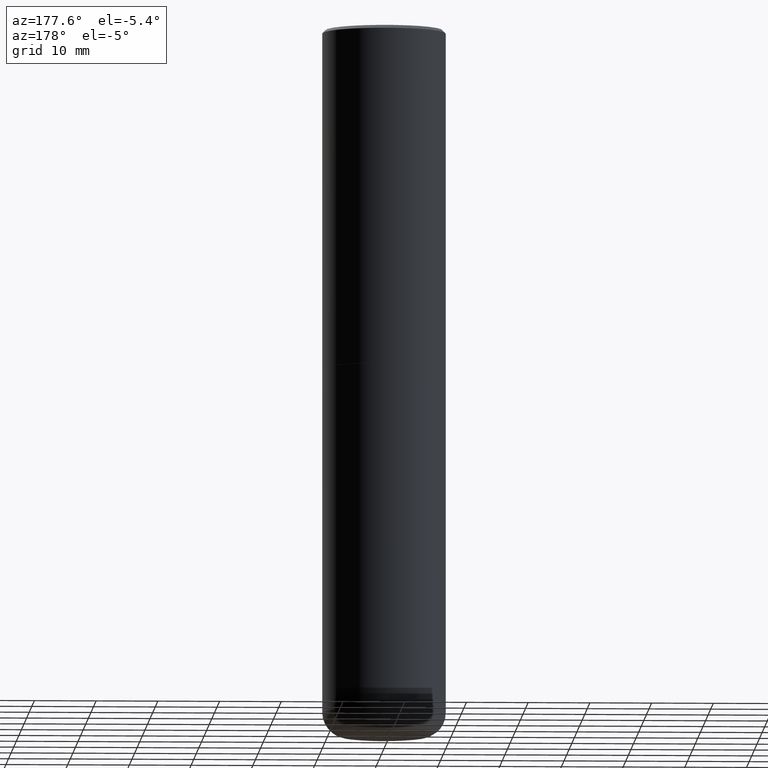
[diagram: clean part render]
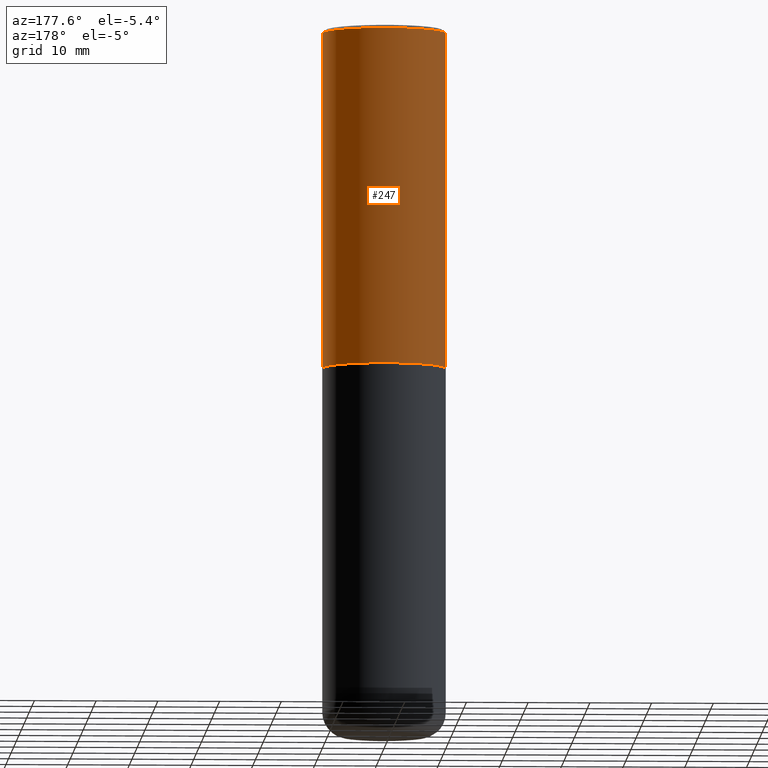
[diagram: same view with one face highlighted and labeled with its STEP entity id]
A machine part, auxiliary view. The second image highlights one B-rep face of the part: STEP entity #247.
In plain terms, the highlighted cylindrical surface (partial cylindrical patch) has radius 10 mm, axis along (-0, 0, 1).
Its self-contained STEP definition (entity closure, byte-faithful):
#14 = DIRECTION ( 'NONE',  ( -2.445468806185136877E-29, 3.491481338843145188E-15, 1.000000000000000000 ) ) ;
#19 = LINE ( 'NONE', #23, #279 ) ;
#23 = CARTESIAN_POINT ( 'NONE',  ( 0.3937000000000002164, -2.749192406205084794E-15, 1.919750796630861012E-29 ) ) ;
#35 = VERTEX_POINT ( 'NONE', #42 ) ;
#41 = CIRCLE ( 'NONE', #205, 0.3937000000000001054 ) ;
#42 = CARTESIAN_POINT ( 'NONE',  ( -0.3937000000000002720, -1.015989167596965718E-15, -2.164399999999999658 ) ) ;
#48 = ORIENTED_EDGE ( 'NONE', *, *, #283, .T. ) ;
#66 = ORIENTED_EDGE ( 'NONE', *, *, #405, .T. ) ;
#78 = LINE ( 'NONE', #208, #177 ) ;
#79 = CARTESIAN_POINT ( 'NONE',  ( -0.3937000000000001054, 2.679362779428220707E-15, -0.02000000000000008715 ) ) ;
#87 = DIRECTION ( 'NONE',  ( 1.000000000000000000, -6.982962677686269077E-15, 0.000000000000000000 ) ) ;
#112 = DIRECTION ( 'NONE',  ( -2.445468806185136597E-29, 3.491481338843145583E-15, 1.000000000000000000 ) ) ;
#115 = CARTESIAN_POINT ( 'NONE',  ( 0.3937000000000002720, -1.030615461599718763E-14, -2.164399999999999658 ) ) ;
#117 = VERTEX_POINT ( 'NONE', #79 ) ;
#143 = FACE_OUTER_BOUND ( 'NONE', #304, .T. ) ;
#144 = DIRECTION ( 'NONE',  ( -2.445468806185136877E-29, 3.491481338843145188E-15, 1.000000000000000000 ) ) ;
#177 = VECTOR ( 'NONE', #14, 39.37007874015748143 ) ;
#205 = AXIS2_PLACEMENT_3D ( 'NONE', #406, #275, #377 ) ;
#208 = CARTESIAN_POINT ( 'NONE',  ( -0.3937000000000002164, 2.797406750687515970E-15, -1.936584745033357576E-29 ) ) ;
#221 = AXIS2_PLACEMENT_3D ( 'NONE', #367, #303, #87 ) ;
#241 = CYLINDRICAL_SURFACE ( 'NONE', #343, 0.3937000000000002164 ) ;
#247 = ADVANCED_FACE ( 'NONE', ( #143 ), #241, .T. ) ;
#252 = CIRCLE ( 'NONE', #221, 0.3937000000000002720 ) ;
#270 = EDGE_CURVE ( 'NONE', #288, #117, #41, .T. ) ;
#273 = CARTESIAN_POINT ( 'NONE',  ( 0.000000000000000000, 0.000000000000000000, 0.000000000000000000 ) ) ;
#275 = DIRECTION ( 'NONE',  ( -2.445468806185136597E-29, 3.491481338843145583E-15, 1.000000000000000000 ) ) ;
#279 = VECTOR ( 'NONE', #144, 39.37007874015748143 ) ;
#281 = VERTEX_POINT ( 'NONE', #115 ) ;
#283 = EDGE_CURVE ( 'NONE', #281, #35, #252, .T. ) ;
#288 = VERTEX_POINT ( 'NONE', #409 ) ;
#303 = DIRECTION ( 'NONE',  ( -2.445468806185136597E-29, 3.491481338843145583E-15, 1.000000000000000000 ) ) ;
#304 = EDGE_LOOP ( 'NONE', ( #48, #66, #347, #306 ) ) ;
#306 = ORIENTED_EDGE ( 'NONE', *, *, #370, .F. ) ;
#343 = AXIS2_PLACEMENT_3D ( 'NONE', #273, #112, #404 ) ;
#347 = ORIENTED_EDGE ( 'NONE', *, *, #270, .F. ) ;
#367 = CARTESIAN_POINT ( 'NONE',  ( 5.292972684107107621E-29, -7.556962209792102838E-15, -2.164399999999999658 ) ) ;
#370 = EDGE_CURVE ( 'NONE', #281, #288, #19, .T. ) ;
#377 = DIRECTION ( 'NONE',  ( 1.000000000000000000, -6.982962677686266711E-15, 0.000000000000000000 ) ) ;
#404 = DIRECTION ( 'NONE',  ( 1.000000000000000000, -6.982962677686266711E-15, 4.876176775795935793E-29 ) ) ;
#405 = EDGE_CURVE ( 'NONE', #35, #117, #78, .T. ) ;
#406 = CARTESIAN_POINT ( 'NONE',  ( 4.890937612370294178E-31, -6.982962677686321191E-17, -0.02000000000000008715 ) ) ;
#409 = CARTESIAN_POINT ( 'NONE',  ( 0.3937000000000001054, -2.770807688499516128E-15, -0.02000000000000008715 ) ) ;